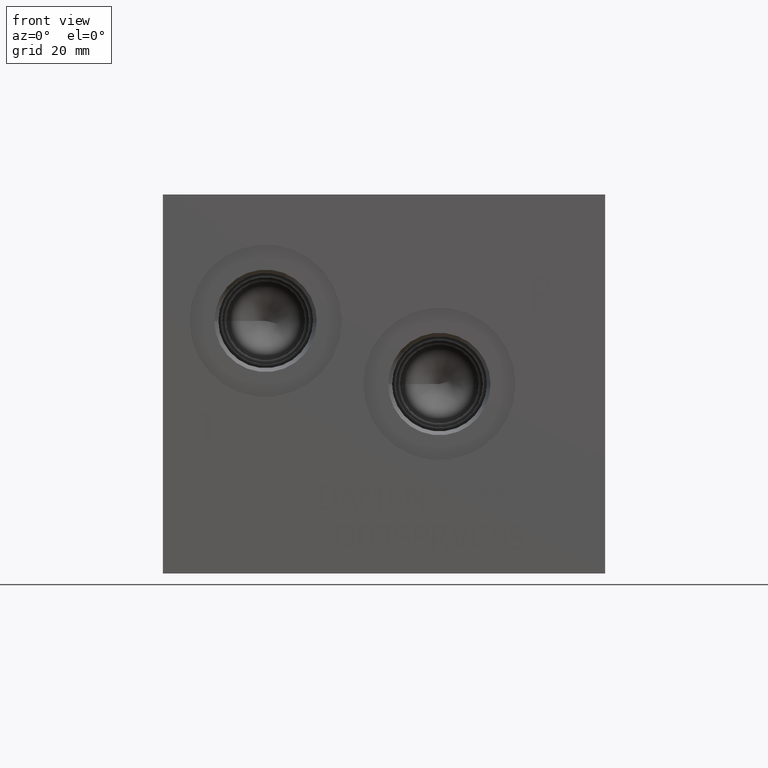
[diagram: clean part render]
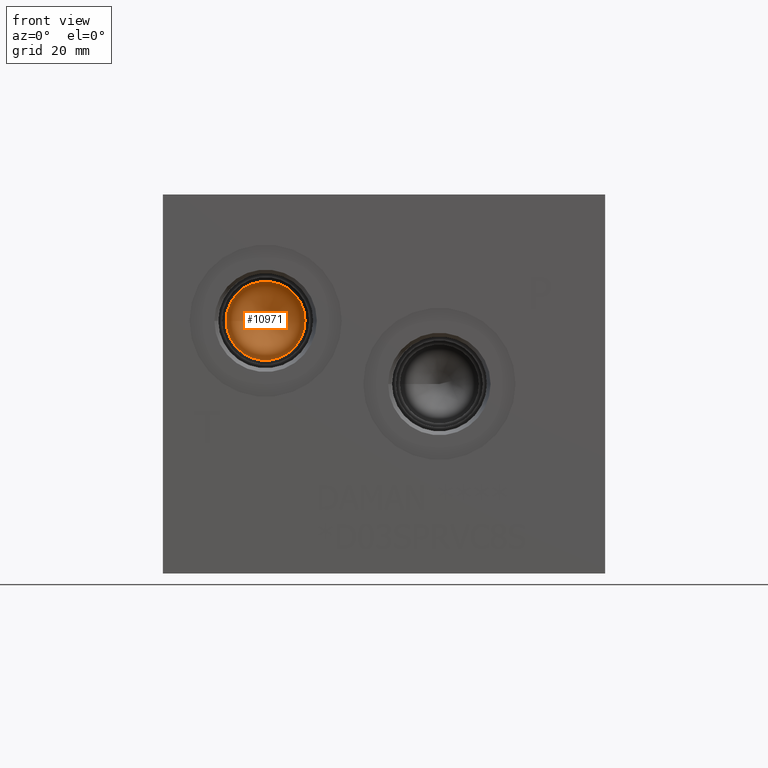
[diagram: same view with one face highlighted and labeled with its STEP entity id]
A machine part, front view. The second image highlights one B-rep face of the part: STEP entity #10971.
In plain terms, the highlighted conical surface has half-angle 60 deg.
Its self-contained STEP definition (entity closure, byte-faithful):
#39=CONICAL_SURFACE('',#11513,3.96875,1.0471975511966);
#228=CIRCLE('',#11514,7.9375);
#229=CIRCLE('',#11515,7.9375);
#1212=FACE_OUTER_BOUND('',#1836,.T.);
#1836=EDGE_LOOP('',(#9612,#9613,#9614,#9615));
#2872=LINE('',#18877,#3876);
#3876=VECTOR('',#13568,3.96875);
#5194=VERTEX_POINT('',#18873);
#5195=VERTEX_POINT('',#18874);
#5196=VERTEX_POINT('',#18876);
#6695=EDGE_CURVE('',#5194,#5195,#228,.T.);
#6696=EDGE_CURVE('',#5195,#5196,#2872,.T.);
#6697=EDGE_CURVE('',#5195,#5194,#229,.T.);
#9612=ORIENTED_EDGE('',*,*,#6695,.T.);
#9613=ORIENTED_EDGE('',*,*,#6696,.T.);
#9614=ORIENTED_EDGE('',*,*,#6696,.F.);
#9615=ORIENTED_EDGE('',*,*,#6697,.T.);
#10971=ADVANCED_FACE('',(#1212),#39,.F.);
#11513=AXIS2_PLACEMENT_3D('',#18872,#13564,#13565);
#11514=AXIS2_PLACEMENT_3D('',#18875,#13566,#13567);
#11515=AXIS2_PLACEMENT_3D('',#18878,#13569,#13570);
#13564=DIRECTION('center_axis',(0.,-1.,0.));
#13565=DIRECTION('ref_axis',(1.,0.,0.));
#13566=DIRECTION('center_axis',(0.,-1.,0.));
#13567=DIRECTION('ref_axis',(1.,0.,0.));
#13568=DIRECTION('',(0.866025403784439,0.5,1.06057523872491E-16));
#13569=DIRECTION('center_axis',(0.,-1.,0.));
#13570=DIRECTION('ref_axis',(1.,0.,0.));
#18872=CARTESIAN_POINT('Origin',(20.6502,25.5239588808463,50.8));
#18873=CARTESIAN_POINT('',(28.5877,23.2326,50.8));
#18874=CARTESIAN_POINT('',(12.7127,23.2326,50.8));
#18875=CARTESIAN_POINT('Origin',(20.6502,23.2326,50.8));
#18876=CARTESIAN_POINT('',(20.6502,27.8153177616927,50.8));
#18877=CARTESIAN_POINT('',(16.68145,25.5239588808463,50.8));
#18878=CARTESIAN_POINT('Origin',(20.6502,23.2326,50.8));